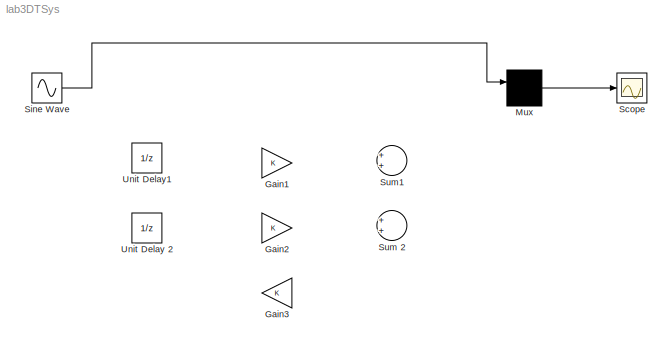
MODEL lab3DTSys
KIND model
BLOCK [Gain] Gain1
  SID = 1
BLOCK [Gain] Gain2
  SID = 2
BLOCK [Gain] Gain3
  SID = 3
BLOCK [Mux] Mux
  Inputs = 2
  Ports = [2, 1]
  SID = 4
BLOCK [Scope] Scope
  NumInputPorts = 1
  Ports = [1]
  SID = 5
  ScopeSpecificationString = Simulink.scopes.TimeScopeBlockCfg('CurrentConfiguration', extmgr.ConfigurationSet(extmgr.Configuration('Core','General UI',true),extmgr.Configuration('Core','Source UI',true),extmgr.Configuration('Sources','WiredSimulink',true,'DataLoggingSaveFormat','Array','DataLoggingLimitDataPoints',true,'DataLoggingDecimation','1','DataLoggingDecimateData',true),extmgr.Configuration('Visuals','Time Domain',tr...<+1667ch>
BLOCK [Sin] Sine Wave
  Frequency = pi/16
  Ports = [0, 1]
  SID = 6
  SampleTime = 1
BLOCK [Sum] Sum 2
  Ports = [2, 1]
  SID = 7
BLOCK [Sum] Sum1
  Ports = [2, 1]
  SID = 8
BLOCK [UnitDelay] Unit Delay 2
  SID = 9
BLOCK [UnitDelay] Unit Delay1
  SID = 10
LINE Mux:1 -> Scope:1
LINE Sine Wave:1 -> Mux:1
